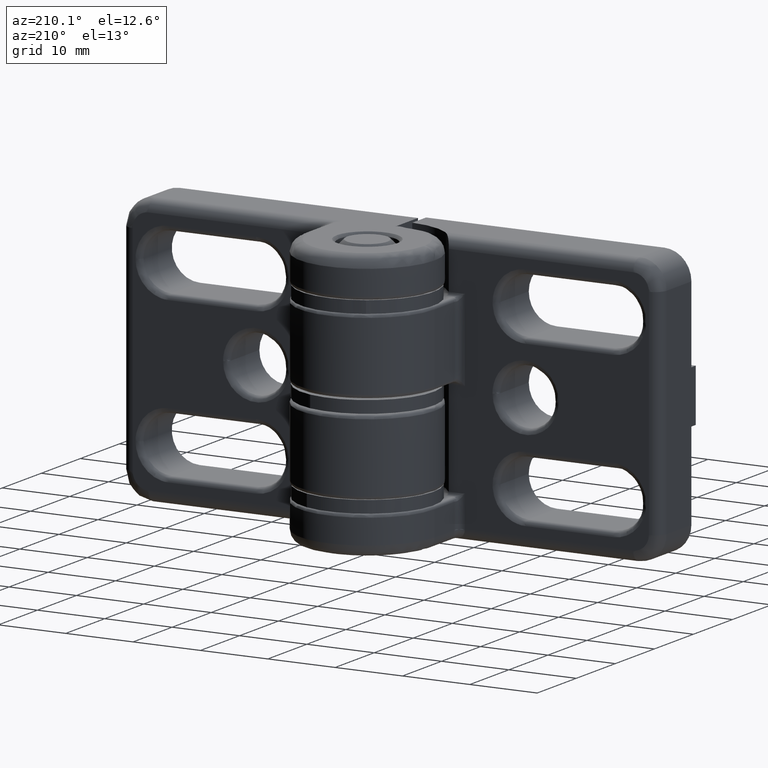
[diagram: clean part render]
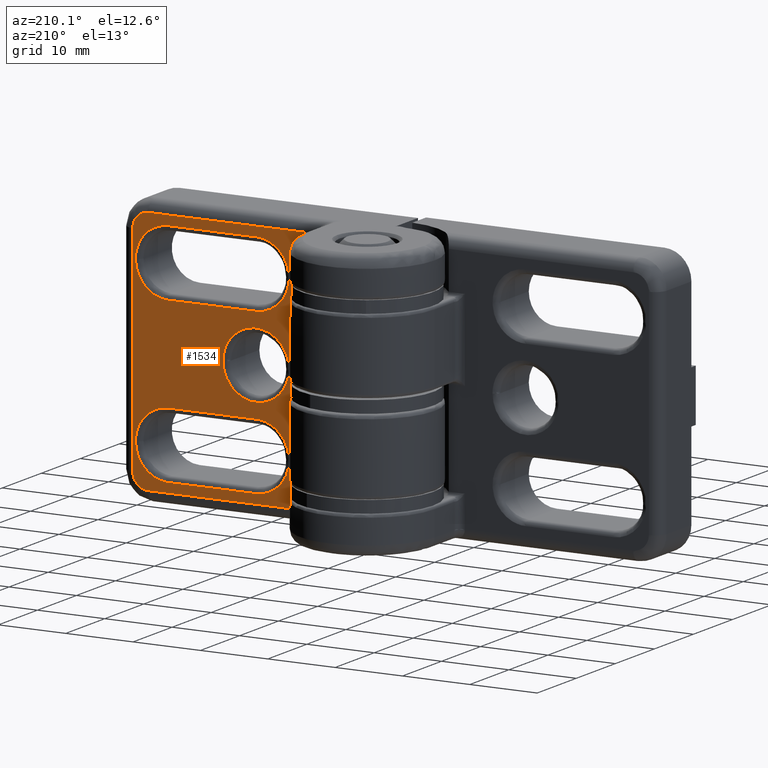
[diagram: same view with one face highlighted and labeled with its STEP entity id]
A machine part, auxiliary view. The second image highlights one B-rep face of the part: STEP entity #1534.
In plain terms, the highlighted planar face has unit normal (-0, 1, 0).
Its self-contained STEP definition (entity closure, byte-faithful):
#5 = LINE ( 'NONE', #3349, #4642 ) ;
#35 = CARTESIAN_POINT ( 'NONE',  ( -37.90000000000000600, -6.000000000000006200, -10.87035354437183400 ) ) ;
#38 = EDGE_CURVE ( 'NONE', #3611, #4102, #4451, .T. ) ;
#80 = VERTEX_POINT ( 'NONE', #299 ) ;
#139 = CARTESIAN_POINT ( 'NONE',  ( -10.20000000000001400, -6.000000000000001800, -27.10000000000000500 ) ) ;
#150 = ORIENTED_EDGE ( 'NONE', *, *, #1560, .F. ) ;
#193 = CARTESIAN_POINT ( 'NONE',  ( -35.87035354437183100, -6.000000000000005300, -27.09999999999999800 ) ) ;
#214 = ORIENTED_EDGE ( 'NONE', *, *, #5480, .F. ) ;
#221 = CARTESIAN_POINT ( 'NONE',  ( -33.00000000000000000, -6.000000000000004400, -3.099999999999998800 ) ) ;
#233 = DIRECTION ( 'NONE',  ( 1.000000000000000000, 1.381890554847218500E-016, 0.0000000000000000000 ) ) ;
#299 = CARTESIAN_POINT ( 'NONE',  ( -8.616843969807046500, -5.999999999999999100, -1.689999999999997100 ) ) ;
#300 = DIRECTION ( 'NONE',  ( -1.381890554847218500E-016, 1.000000000000000000, 0.0000000000000000000 ) ) ;
#309 = VERTEX_POINT ( 'NONE', #4794 ) ;
#319 = CARTESIAN_POINT ( 'NONE',  ( -37.90000000000000600, -6.000000000000005300, -32.00000000000000000 ) ) ;
#345 = LINE ( 'NONE', #4481, #2626 ) ;
#371 = EDGE_CURVE ( 'NONE', #4608, #3611, #3834, .T. ) ;
#438 = VERTEX_POINT ( 'NONE', #3299 ) ;
#451 = EDGE_CURVE ( 'NONE', #5009, #4519, #3125, .T. ) ;
#493 =( BOUNDED_CURVE ( )  B_SPLINE_CURVE ( 3, ( #4905, #2751, #1465, #4996 ),
 .UNSPECIFIED., .F., .F. ) 
 B_SPLINE_CURVE_WITH_KNOTS ( ( 4, 4 ),
 ( 0.0000000000000000000, 1.000000000000000000 ),
 .UNSPECIFIED. ) 
 CURVE ( )  GEOMETRIC_REPRESENTATION_ITEM ( )  RATIONAL_B_SPLINE_CURVE ( ( 1.000000000000000000, 0.3333333333333339800, 0.3333333333333339800, 1.000000000000000000 ) ) 
 REPRESENTATION_ITEM ( '' )  );
#547 =( BOUNDED_CURVE ( )  B_SPLINE_CURVE ( 3, ( #671, #4809, #193, #635 ),
 .UNSPECIFIED., .F., .F. ) 
 B_SPLINE_CURVE_WITH_KNOTS ( ( 4, 4 ),
 ( 0.0000000000000000000, 1.000000000000000000 ),
 .UNSPECIFIED. ) 
 CURVE ( )  GEOMETRIC_REPRESENTATION_ITEM ( )  RATIONAL_B_SPLINE_CURVE ( ( 1.000000000000000000, 0.8047378541243646000, 0.8047378541243646000, 1.000000000000000000 ) ) 
 REPRESENTATION_ITEM ( '' )  );
#571 = CARTESIAN_POINT ( 'NONE',  ( -15.09999999999999800, -6.000000000000001800, -19.99999999999999600 ) ) ;
#578 = VECTOR ( 'NONE', #3839, 1000.000000000000000 ) ;
#597 = CARTESIAN_POINT ( 'NONE',  ( -8.616843969807044700, -6.000000000000002700, -33.64999999999999900 ) ) ;
#606 = CARTESIAN_POINT ( 'NONE',  ( -15.09999999999999300, -6.000000000000002700, -29.79999999999999700 ) ) ;
#635 = CARTESIAN_POINT ( 'NONE',  ( -33.00000000000000000, -6.000000000000004400, -27.09999999999999800 ) ) ;
#671 = CARTESIAN_POINT ( 'NONE',  ( -37.90000000000000600, -6.000000000000005300, -32.00000000000000000 ) ) ;
#689 = CARTESIAN_POINT ( 'NONE',  ( -37.35316667091815600, -6.000000000000001800, -1.689999999999996400 ) ) ;
#700 = DIRECTION ( 'NONE',  ( -0.0000000000000000000, -0.0000000000000000000, -1.000000000000000000 ) ) ;
#767 = CARTESIAN_POINT ( 'NONE',  ( -37.90000000000000600, -6.000000000000005300, -8.000000000000000000 ) ) ;
#778 = CARTESIAN_POINT ( 'NONE',  ( -11.00000000000000400, -6.000000000000000900, -40.00000000000000000 ) ) ;
#851 = LINE ( 'NONE', #4315, #578 ) ;
#872 = ORIENTED_EDGE ( 'NONE', *, *, #1582, .F. ) ;
#880 = VERTEX_POINT ( 'NONE', #2651 ) ;
#890 = CARTESIAN_POINT ( 'NONE',  ( -33.00000000000000000, -6.000000000000004400, -12.90000000000000200 ) ) ;
#897 = VERTEX_POINT ( 'NONE', #3071 ) ;
#988 = EDGE_CURVE ( 'NONE', #897, #3132, #4912, .T. ) ;
#1017 = CARTESIAN_POINT ( 'NONE',  ( -24.89999999999999900, -6.000000000000003600, -20.00000000000000000 ) ) ;
#1032 = ORIENTED_EDGE ( 'NONE', *, *, #3391, .T. ) ;
#1078 = CARTESIAN_POINT ( 'NONE',  ( -15.09999999999999800, -6.000000000000001800, -19.99999999999999600 ) ) ;
#1101 = CARTESIAN_POINT ( 'NONE',  ( -8.616843969807044700, -6.000000000000000900, -36.90000000000000600 ) ) ;
#1147 =( BOUNDED_CURVE ( )  B_SPLINE_CURVE ( 3, ( #2908, #4704, #3381, #319 ),
 .UNSPECIFIED., .F., .F. ) 
 B_SPLINE_CURVE_WITH_KNOTS ( ( 4, 4 ),
 ( 0.0000000000000000000, 1.000000000000000000 ),
 .UNSPECIFIED. ) 
 CURVE ( )  GEOMETRIC_REPRESENTATION_ITEM ( )  RATIONAL_B_SPLINE_CURVE ( ( 1.000000000000000000, 0.8047378541243646000, 0.8047378541243646000, 1.000000000000000000 ) ) 
 REPRESENTATION_ITEM ( '' )  );
#1157 = VECTOR ( 'NONE', #2720, 1000.000000000000000 ) ;
#1303 =( BOUNDED_CURVE ( )  B_SPLINE_CURVE ( 3, ( #571, #606, #1896, #2747 ),
 .UNSPECIFIED., .F., .F. ) 
 B_SPLINE_CURVE_WITH_KNOTS ( ( 4, 4 ),
 ( 0.0000000000000000000, 1.000000000000000000 ),
 .UNSPECIFIED. ) 
 CURVE ( )  GEOMETRIC_REPRESENTATION_ITEM ( )  RATIONAL_B_SPLINE_CURVE ( ( 1.000000000000000000, 0.3333333333333332000, 0.3333333333333332000, 1.000000000000000000 ) ) 
 REPRESENTATION_ITEM ( '' )  );
#1335 = FACE_OUTER_BOUND ( 'NONE', #1404, .T. ) ;
#1340 = EDGE_CURVE ( 'NONE', #3529, #3165, #4734, .T. ) ;
#1360 = CARTESIAN_POINT ( 'NONE',  ( -38.31000000000000200, -6.000000000000005300, -36.00000000000001400 ) ) ;
#1367 =( BOUNDED_CURVE ( )  B_SPLINE_CURVE ( 3, ( #2844, #689, #3719, #1540 ),
 .UNSPECIFIED., .F., .F. ) 
 B_SPLINE_CURVE_WITH_KNOTS ( ( 4, 4 ),
 ( 0.0000000000000000000, 1.000000000000000000 ),
 .UNSPECIFIED. ) 
 CURVE ( )  GEOMETRIC_REPRESENTATION_ITEM ( )  RATIONAL_B_SPLINE_CURVE ( ( 1.000000000000000000, 0.8047378541243643800, 0.8047378541243643800, 1.000000000000000000 ) ) 
 REPRESENTATION_ITEM ( '' )  );
#1396 = VERTEX_POINT ( 'NONE', #2365 ) ;
#1404 = EDGE_LOOP ( 'NONE', ( #1032, #5141, #5260, #5232, #4248, #5226, #2104, #2118, #4529, #214, #3206, #4655 ) ) ;
#1409 = EDGE_CURVE ( 'NONE', #80, #2657, #4791, .T. ) ;
#1412 = DIRECTION ( 'NONE',  ( -1.000000000000000000, -1.381890554847218500E-016, 0.0000000000000000000 ) ) ;
#1465 = CARTESIAN_POINT ( 'NONE',  ( -10.20000000000001000, -6.000000000000001800, -12.89999999999999000 ) ) ;
#1496 = VERTEX_POINT ( 'NONE', #1078 ) ;
#1517 = CARTESIAN_POINT ( 'NONE',  ( -8.616843969807044700, -6.000000000000000900, -19.50000000000000000 ) ) ;
#1534 = ADVANCED_FACE ( 'NONE', ( #3332, #4580, #3107, #1335 ), #2451, .T. ) ;
#1540 = CARTESIAN_POINT ( 'NONE',  ( -38.31000000000000900, -6.000000000000005300, -3.999999999999998200 ) ) ;
#1553 = VERTEX_POINT ( 'NONE', #2015 ) ;
#1560 = EDGE_CURVE ( 'NONE', #4159, #2539, #4723, .T. ) ;
#1582 = EDGE_CURVE ( 'NONE', #3165, #5487, #5314, .T. ) ;
#1599 = CARTESIAN_POINT ( 'NONE',  ( -15.10000000000000100, -6.000000000000001800, -10.20000000000000100 ) ) ;
#1612 = CARTESIAN_POINT ( 'NONE',  ( -8.616843969807044700, -6.000000000000000000, -38.31000000000000200 ) ) ;
#1613 = CARTESIAN_POINT ( 'NONE',  ( -37.90000000000000600, -6.000000000000005300, -5.129646455628161100 ) ) ;
#1675 = CARTESIAN_POINT ( 'NONE',  ( -33.00000000000000000, -6.000000000000004400, -3.099999999999998800 ) ) ;
#1720 = ORIENTED_EDGE ( 'NONE', *, *, #2056, .F. ) ;
#1748 = LINE ( 'NONE', #778, #2571 ) ;
#1772 = VECTOR ( 'NONE', #233, 1000.000000000000000 ) ;
#1810 = CARTESIAN_POINT ( 'NONE',  ( -36.00000000000001400, -6.000000000000003600, -38.31000000000000200 ) ) ;
#1868 = EDGE_CURVE ( 'NONE', #4654, #3529, #4156, .T. ) ;
#1896 = CARTESIAN_POINT ( 'NONE',  ( -24.89999999999999500, -6.000000000000005300, -29.79999999999999700 ) ) ;
#1960 = DIRECTION ( 'NONE',  ( -1.000000000000000000, -1.381890554847218500E-016, 0.0000000000000000000 ) ) ;
#1961 = DIRECTION ( 'NONE',  ( -1.000000000000000000, -1.381890554847218500E-016, 0.0000000000000000000 ) ) ;
#1987 = VERTEX_POINT ( 'NONE', #597 ) ;
#1989 =( BOUNDED_CURVE ( )  B_SPLINE_CURVE ( 3, ( #1017, #4672, #1599, #2414 ),
 .UNSPECIFIED., .F., .F. ) 
 B_SPLINE_CURVE_WITH_KNOTS ( ( 4, 4 ),
 ( 0.0000000000000000000, 1.000000000000000000 ),
 .UNSPECIFIED. ) 
 CURVE ( )  GEOMETRIC_REPRESENTATION_ITEM ( )  RATIONAL_B_SPLINE_CURVE ( ( 1.000000000000000000, 0.3333333333333335400, 0.3333333333333335400, 1.000000000000000000 ) ) 
 REPRESENTATION_ITEM ( '' )  );
#2015 = CARTESIAN_POINT ( 'NONE',  ( -24.89999999999999900, -6.000000000000003600, -20.00000000000000000 ) ) ;
#2056 = EDGE_CURVE ( 'NONE', #4519, #4159, #4434, .T. ) ;
#2058 = VECTOR ( 'NONE', #3365, 1000.000000000000000 ) ;
#2082 = EDGE_CURVE ( 'NONE', #438, #309, #1367, .T. ) ;
#2086 = DIRECTION ( 'NONE',  ( -1.000000000000000000, -1.381890554847218500E-016, 0.0000000000000000000 ) ) ;
#2098 = DIRECTION ( 'NONE',  ( -0.0000000000000000000, -0.0000000000000000000, -1.000000000000000000 ) ) ;
#2104 = ORIENTED_EDGE ( 'NONE', *, *, #371, .F. ) ;
#2118 = ORIENTED_EDGE ( 'NONE', *, *, #4773, .F. ) ;
#2141 = CARTESIAN_POINT ( 'NONE',  ( -10.20000000000001000, -6.000000000000001800, -36.89999999999999100 ) ) ;
#2244 = AXIS2_PLACEMENT_3D ( 'NONE', #5541, #300, #1960 ) ;
#2335 = EDGE_CURVE ( 'NONE', #1553, #1496, #1989, .T. ) ;
#2365 = CARTESIAN_POINT ( 'NONE',  ( -11.00000000000000400, -6.000000000000000900, -7.350000000000002300 ) ) ;
#2414 = CARTESIAN_POINT ( 'NONE',  ( -15.09999999999999800, -6.000000000000001800, -19.99999999999999600 ) ) ;
#2427 = LINE ( 'NONE', #5361, #4703 ) ;
#2451 = PLANE ( 'NONE',  #2244 ) ;
#2533 = VERTEX_POINT ( 'NONE', #4753 ) ;
#2539 = VERTEX_POINT ( 'NONE', #4266 ) ;
#2571 = VECTOR ( 'NONE', #2098, 1000.000000000000000 ) ;
#2626 = VECTOR ( 'NONE', #3995, 1000.000000000000000 ) ;
#2638 = ORIENTED_EDGE ( 'NONE', *, *, #451, .F. ) ;
#2651 = CARTESIAN_POINT ( 'NONE',  ( -37.90000000000000600, -6.000000000000005300, -32.00000000000000000 ) ) ;
#2657 = VERTEX_POINT ( 'NONE', #4709 ) ;
#2678 = CARTESIAN_POINT ( 'NONE',  ( -20.00000000000000000, -6.000000000000002700, -12.90000000000000200 ) ) ;
#2720 = DIRECTION ( 'NONE',  ( -0.0000000000000000000, -0.0000000000000000000, -1.000000000000000000 ) ) ;
#2747 = CARTESIAN_POINT ( 'NONE',  ( -24.89999999999999900, -6.000000000000003600, -20.00000000000000000 ) ) ;
#2751 = CARTESIAN_POINT ( 'NONE',  ( -10.20000000000001400, -6.000000000000001800, -3.100000000000004100 ) ) ;
#2779 = CARTESIAN_POINT ( 'NONE',  ( -20.00000000000000000, -6.000000000000002700, -36.90000000000000600 ) ) ;
#2802 = EDGE_CURVE ( 'NONE', #2657, #1396, #851, .T. ) ;
#2818 = EDGE_CURVE ( 'NONE', #2539, #880, #1147, .T. ) ;
#2827 = CARTESIAN_POINT ( 'NONE',  ( -19.99999999999999600, -6.000000000000002700, -3.099999999999998300 ) ) ;
#2835 = DIRECTION ( 'NONE',  ( -1.000000000000000000, -1.381890554847218500E-016, 0.0000000000000000000 ) ) ;
#2844 = CARTESIAN_POINT ( 'NONE',  ( -36.00000000000000700, -6.000000000000003600, -1.689999999999998400 ) ) ;
#2893 = DIRECTION ( 'NONE',  ( 1.000000000000000000, 1.381890554847218500E-016, 0.0000000000000000000 ) ) ;
#2908 = CARTESIAN_POINT ( 'NONE',  ( -33.00000000000000000, -6.000000000000004400, -36.90000000000000600 ) ) ;
#2947 = ORIENTED_EDGE ( 'NONE', *, *, #1340, .F. ) ;
#2988 = VECTOR ( 'NONE', #1412, 1000.000000000000000 ) ;
#3019 = ORIENTED_EDGE ( 'NONE', *, *, #2818, .F. ) ;
#3064 = CARTESIAN_POINT ( 'NONE',  ( -35.87035354437183800, -6.000000000000006200, -12.90000000000000000 ) ) ;
#3071 = CARTESIAN_POINT ( 'NONE',  ( -11.00000000000000400, -6.000000000000001800, -19.50000000000000000 ) ) ;
#3083 = CARTESIAN_POINT ( 'NONE',  ( -33.00000000000000000, -6.000000000000004400, -12.90000000000000200 ) ) ;
#3107 = FACE_BOUND ( 'NONE', #3109, .T. ) ;
#3109 = EDGE_LOOP ( 'NONE', ( #5552, #5404 ) ) ;
#3125 = LINE ( 'NONE', #4080, #1772 ) ;
#3132 = VERTEX_POINT ( 'NONE', #1517 ) ;
#3144 = LINE ( 'NONE', #3173, #3711 ) ;
#3158 = LINE ( 'NONE', #4653, #4295 ) ;
#3165 = VERTEX_POINT ( 'NONE', #3572 ) ;
#3173 = CARTESIAN_POINT ( 'NONE',  ( 8.291343329083312000E-016, -6.000000000000000000, -1.689999999999996800 ) ) ;
#3204 = CARTESIAN_POINT ( 'NONE',  ( -33.00000000000000000, -6.000000000000004400, -27.09999999999999800 ) ) ;
#3206 = ORIENTED_EDGE ( 'NONE', *, *, #1409, .T. ) ;
#3241 = EDGE_LOOP ( 'NONE', ( #4589, #3019, #150, #1720, #2638 ) ) ;
#3260 = VECTOR ( 'NONE', #4969, 1000.000000000000000 ) ;
#3299 = CARTESIAN_POINT ( 'NONE',  ( -36.00000000000000700, -6.000000000000003600, -1.689999999999998400 ) ) ;
#3332 = FACE_BOUND ( 'NONE', #4182, .T. ) ;
#3344 = CARTESIAN_POINT ( 'NONE',  ( -35.87035354437183100, -6.000000000000005300, -3.099999999999994800 ) ) ;
#3349 = CARTESIAN_POINT ( 'NONE',  ( -8.616843969807044700, -6.000000000000000900, -3.099999999999999200 ) ) ;
#3365 = DIRECTION ( 'NONE',  ( 1.000000000000000000, 1.381890554847218500E-016, -0.0000000000000000000 ) ) ;
#3370 = CARTESIAN_POINT ( 'NONE',  ( -19.99999999999999600, -6.000000000000002700, -27.09999999999999800 ) ) ;
#3381 = CARTESIAN_POINT ( 'NONE',  ( -37.90000000000002000, -6.000000000000005300, -34.87035354437184500 ) ) ;
#3391 = EDGE_CURVE ( 'NONE', #1396, #897, #1748, .T. ) ;
#3514 = ORIENTED_EDGE ( 'NONE', *, *, #5608, .F. ) ;
#3529 = VERTEX_POINT ( 'NONE', #890 ) ;
#3547 = CARTESIAN_POINT ( 'NONE',  ( -37.35316667091815600, -6.000000000000001800, -38.31000000000000200 ) ) ;
#3572 = CARTESIAN_POINT ( 'NONE',  ( -37.90000000000000600, -6.000000000000005300, -8.000000000000000000 ) ) ;
#3606 = CARTESIAN_POINT ( 'NONE',  ( -38.31000000000000200, -6.000000000000001800, -37.35316667091815600 ) ) ;
#3611 = VERTEX_POINT ( 'NONE', #5346 ) ;
#3613 = EDGE_CURVE ( 'NONE', #3132, #1987, #345, .T. ) ;
#3666 = EDGE_CURVE ( 'NONE', #1496, #1553, #1303, .T. ) ;
#3711 = VECTOR ( 'NONE', #1961, 1000.000000000000000 ) ;
#3719 = CARTESIAN_POINT ( 'NONE',  ( -38.31000000000000900, -6.000000000000001800, -2.646833329081846700 ) ) ;
#3809 = EDGE_CURVE ( 'NONE', #5487, #4804, #5, .T. ) ;
#3834 =( BOUNDED_CURVE ( )  B_SPLINE_CURVE ( 3, ( #1360, #3606, #3547, #1810 ),
 .UNSPECIFIED., .F., .F. ) 
 B_SPLINE_CURVE_WITH_KNOTS ( ( 4, 4 ),
 ( 0.0000000000000000000, 1.000000000000000000 ),
 .UNSPECIFIED. ) 
 CURVE ( )  GEOMETRIC_REPRESENTATION_ITEM ( )  RATIONAL_B_SPLINE_CURVE ( ( 1.000000000000000000, 0.8047378541243649400, 0.8047378541243649400, 1.000000000000000000 ) ) 
 REPRESENTATION_ITEM ( '' )  );
#3839 = DIRECTION ( 'NONE',  ( -1.000000000000000000, -1.381890554847218500E-016, 0.0000000000000000000 ) ) ;
#3882 = EDGE_CURVE ( 'NONE', #2533, #4102, #3158, .T. ) ;
#3973 = CARTESIAN_POINT ( 'NONE',  ( -37.90000000000000600, -6.000000000000005300, -8.000000000000000000 ) ) ;
#3988 = CARTESIAN_POINT ( 'NONE',  ( -38.31000000000000200, -6.000000000000005300, -36.00000000000001400 ) ) ;
#3995 = DIRECTION ( 'NONE',  ( -0.0000000000000000000, -0.0000000000000000000, -1.000000000000000000 ) ) ;
#4080 = CARTESIAN_POINT ( 'NONE',  ( -8.616843969807044700, -6.000000000000000900, -27.09999999999999800 ) ) ;
#4093 = CARTESIAN_POINT ( 'NONE',  ( -8.616843969807048300, -5.999999999999997300, -40.00000000000000000 ) ) ;
#4102 = VERTEX_POINT ( 'NONE', #4223 ) ;
#4156 = LINE ( 'NONE', #4911, #2988 ) ;
#4159 = VERTEX_POINT ( 'NONE', #2779 ) ;
#4182 = EDGE_LOOP ( 'NONE', ( #3514, #4324, #872, #2947, #4746 ) ) ;
#4193 = EDGE_CURVE ( 'NONE', #1987, #2533, #4831, .T. ) ;
#4223 = CARTESIAN_POINT ( 'NONE',  ( -11.00000000000000400, -6.000000000000000900, -38.31000000000000200 ) ) ;
#4248 = ORIENTED_EDGE ( 'NONE', *, *, #3882, .T. ) ;
#4266 = CARTESIAN_POINT ( 'NONE',  ( -33.00000000000000000, -6.000000000000004400, -36.90000000000000600 ) ) ;
#4295 = VECTOR ( 'NONE', #700, 1000.000000000000000 ) ;
#4315 = CARTESIAN_POINT ( 'NONE',  ( -8.616843969807044700, -6.000000000000000900, -7.350000000000002300 ) ) ;
#4324 = ORIENTED_EDGE ( 'NONE', *, *, #3809, .F. ) ;
#4403 = EDGE_CURVE ( 'NONE', #880, #5009, #547, .T. ) ;
#4430 = VECTOR ( 'NONE', #2086, 1000.000000000000000 ) ;
#4434 =( BOUNDED_CURVE ( )  B_SPLINE_CURVE ( 3, ( #4443, #139, #2141, #5229 ),
 .UNSPECIFIED., .F., .F. ) 
 B_SPLINE_CURVE_WITH_KNOTS ( ( 4, 4 ),
 ( 0.0000000000000000000, 1.000000000000000000 ),
 .UNSPECIFIED. ) 
 CURVE ( )  GEOMETRIC_REPRESENTATION_ITEM ( )  RATIONAL_B_SPLINE_CURVE ( ( 1.000000000000000000, 0.3333333333333339800, 0.3333333333333339800, 1.000000000000000000 ) ) 
 REPRESENTATION_ITEM ( '' )  );
#4439 = DIRECTION ( 'NONE',  ( -0.0000000000000000000, -0.0000000000000000000, -1.000000000000000000 ) ) ;
#4443 = CARTESIAN_POINT ( 'NONE',  ( -19.99999999999999600, -6.000000000000002700, -27.09999999999999800 ) ) ;
#4451 = LINE ( 'NONE', #1612, #2058 ) ;
#4481 = CARTESIAN_POINT ( 'NONE',  ( -8.616843969807046500, -6.000000000000000900, -40.00000000000000000 ) ) ;
#4519 = VERTEX_POINT ( 'NONE', #3370 ) ;
#4529 = ORIENTED_EDGE ( 'NONE', *, *, #2082, .F. ) ;
#4553 = CARTESIAN_POINT ( 'NONE',  ( -8.616843969807044700, -6.000000000000000900, -19.50000000000000000 ) ) ;
#4580 = FACE_BOUND ( 'NONE', #3241, .T. ) ;
#4589 = ORIENTED_EDGE ( 'NONE', *, *, #4403, .F. ) ;
#4608 = VERTEX_POINT ( 'NONE', #3988 ) ;
#4642 = VECTOR ( 'NONE', #2893, 1000.000000000000000 ) ;
#4653 = CARTESIAN_POINT ( 'NONE',  ( -11.00000000000000400, -6.000000000000000900, -40.00000000000000000 ) ) ;
#4654 = VERTEX_POINT ( 'NONE', #2678 ) ;
#4655 = ORIENTED_EDGE ( 'NONE', *, *, #2802, .T. ) ;
#4672 = CARTESIAN_POINT ( 'NONE',  ( -24.90000000000000200, -6.000000000000002700, -10.20000000000000500 ) ) ;
#4703 = VECTOR ( 'NONE', #4439, 1000.000000000000000 ) ;
#4704 = CARTESIAN_POINT ( 'NONE',  ( -35.87035354437183800, -6.000000000000005300, -36.90000000000001300 ) ) ;
#4709 = CARTESIAN_POINT ( 'NONE',  ( -8.616843969807046500, -6.000000000000000900, -7.350000000000002300 ) ) ;
#4723 = LINE ( 'NONE', #1101, #4430 ) ;
#4734 =( BOUNDED_CURVE ( )  B_SPLINE_CURVE ( 3, ( #3083, #3064, #35, #3973 ),
 .UNSPECIFIED., .F., .F. ) 
 B_SPLINE_CURVE_WITH_KNOTS ( ( 4, 4 ),
 ( 0.0000000000000000000, 1.000000000000000000 ),
 .UNSPECIFIED. ) 
 CURVE ( )  GEOMETRIC_REPRESENTATION_ITEM ( )  RATIONAL_B_SPLINE_CURVE ( ( 1.000000000000000000, 0.8047378541243649400, 0.8047378541243649400, 1.000000000000000000 ) ) 
 REPRESENTATION_ITEM ( '' )  );
#4746 = ORIENTED_EDGE ( 'NONE', *, *, #1868, .F. ) ;
#4753 = CARTESIAN_POINT ( 'NONE',  ( -11.00000000000000400, -6.000000000000000900, -33.65000000000000600 ) ) ;
#4772 = VECTOR ( 'NONE', #2835, 1000.000000000000000 ) ;
#4773 = EDGE_CURVE ( 'NONE', #309, #4608, #2427, .T. ) ;
#4791 = LINE ( 'NONE', #4093, #1157 ) ;
#4794 = CARTESIAN_POINT ( 'NONE',  ( -38.31000000000000900, -6.000000000000005300, -3.999999999999998200 ) ) ;
#4804 = VERTEX_POINT ( 'NONE', #2827 ) ;
#4809 = CARTESIAN_POINT ( 'NONE',  ( -37.90000000000000600, -6.000000000000005300, -29.12964645562816600 ) ) ;
#4831 = LINE ( 'NONE', #5475, #4772 ) ;
#4905 = CARTESIAN_POINT ( 'NONE',  ( -19.99999999999999600, -6.000000000000002700, -3.099999999999998300 ) ) ;
#4911 = CARTESIAN_POINT ( 'NONE',  ( -8.616843969807044700, -6.000000000000000900, -12.90000000000000200 ) ) ;
#4912 = LINE ( 'NONE', #4553, #3260 ) ;
#4969 = DIRECTION ( 'NONE',  ( 1.000000000000000000, 1.381890554847218500E-016, -0.0000000000000000000 ) ) ;
#4996 = CARTESIAN_POINT ( 'NONE',  ( -20.00000000000000000, -6.000000000000002700, -12.90000000000000200 ) ) ;
#5009 = VERTEX_POINT ( 'NONE', #3204 ) ;
#5141 = ORIENTED_EDGE ( 'NONE', *, *, #988, .T. ) ;
#5226 = ORIENTED_EDGE ( 'NONE', *, *, #38, .F. ) ;
#5229 = CARTESIAN_POINT ( 'NONE',  ( -20.00000000000000000, -6.000000000000002700, -36.90000000000000600 ) ) ;
#5232 = ORIENTED_EDGE ( 'NONE', *, *, #4193, .T. ) ;
#5260 = ORIENTED_EDGE ( 'NONE', *, *, #3613, .T. ) ;
#5314 =( BOUNDED_CURVE ( )  B_SPLINE_CURVE ( 3, ( #767, #1613, #3344, #1675 ),
 .UNSPECIFIED., .F., .F. ) 
 B_SPLINE_CURVE_WITH_KNOTS ( ( 4, 4 ),
 ( 0.0000000000000000000, 1.000000000000000000 ),
 .UNSPECIFIED. ) 
 CURVE ( )  GEOMETRIC_REPRESENTATION_ITEM ( )  RATIONAL_B_SPLINE_CURVE ( ( 1.000000000000000000, 0.8047378541243646000, 0.8047378541243646000, 1.000000000000000000 ) ) 
 REPRESENTATION_ITEM ( '' )  );
#5346 = CARTESIAN_POINT ( 'NONE',  ( -36.00000000000001400, -6.000000000000003600, -38.31000000000000200 ) ) ;
#5361 = CARTESIAN_POINT ( 'NONE',  ( -38.31000000000000200, -6.000000000000008000, -40.00000000000000000 ) ) ;
#5404 = ORIENTED_EDGE ( 'NONE', *, *, #2335, .F. ) ;
#5475 = CARTESIAN_POINT ( 'NONE',  ( -8.616843969807044700, -6.000000000000000900, -33.64999999999999900 ) ) ;
#5480 = EDGE_CURVE ( 'NONE', #80, #438, #3144, .T. ) ;
#5487 = VERTEX_POINT ( 'NONE', #221 ) ;
#5541 = CARTESIAN_POINT ( 'NONE',  ( -8.616843969807044700, -6.000000000000000900, -40.00000000000000000 ) ) ;
#5552 = ORIENTED_EDGE ( 'NONE', *, *, #3666, .F. ) ;
#5608 = EDGE_CURVE ( 'NONE', #4804, #4654, #493, .T. ) ;